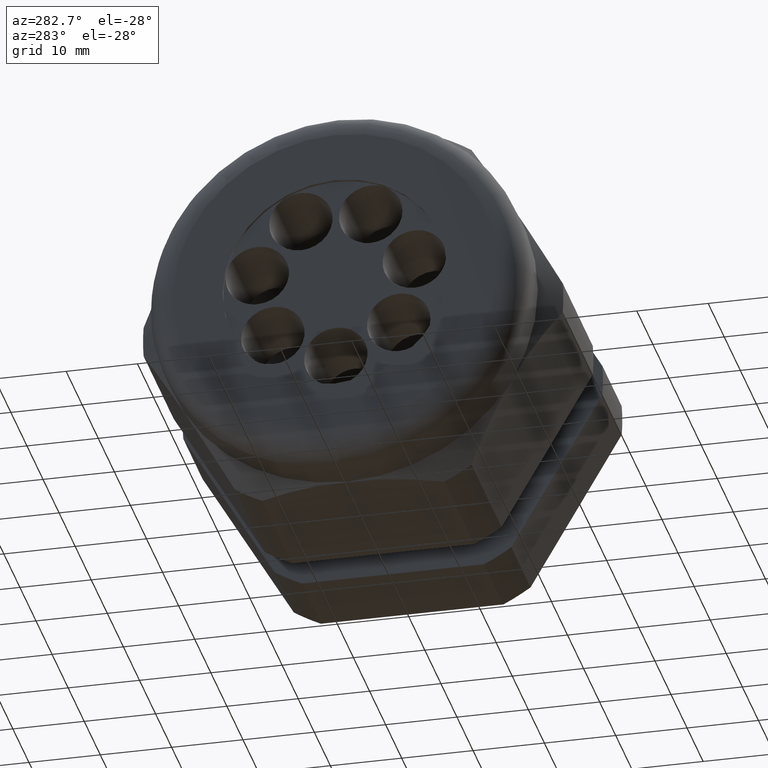
[diagram: clean part render]
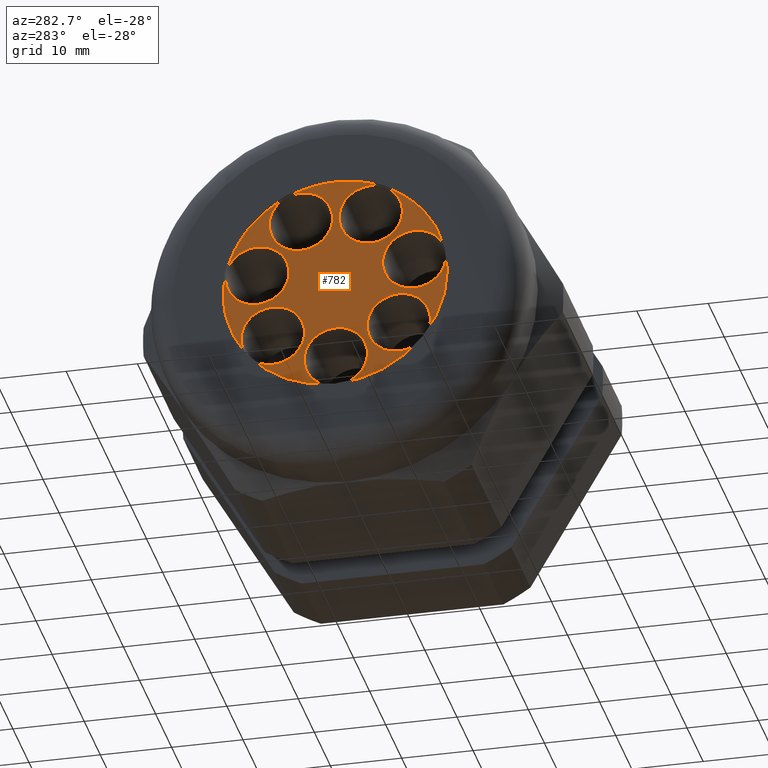
[diagram: same view with one face highlighted and labeled with its STEP entity id]
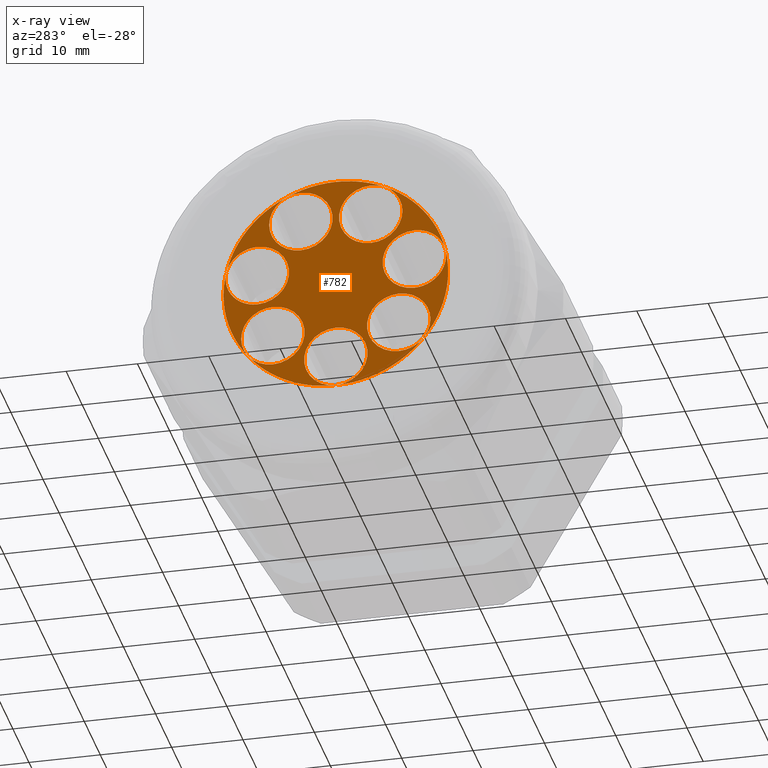
[diagram: x-ray of the same camera — body ghosted, the highlighted face saturated]
A machine part, auxiliary view. The second image highlights one B-rep face of the part: STEP entity #782.
The next image is the same camera in x-ray: the body ghosted, the highlighted face saturated — about 0% of this face is hidden behind the body in this view.
In plain terms, the highlighted planar face has unit normal (-1, 0, 0).
Its self-contained STEP definition (entity closure, byte-faithful):
#268 = VERTEX_POINT ( 'NONE', #1431 ) ;
#270 = VERTEX_POINT ( 'NONE', #1430 ) ;
#300 = EDGE_CURVE ( 'NONE', #270, #268, #1503, .T. ) ;
#314 = VERTEX_POINT ( 'NONE', #1522 ) ;
#328 = VERTEX_POINT ( 'NONE', #1506 ) ;
#361 = VERTEX_POINT ( 'NONE', #1571 ) ;
#362 = EDGE_CURVE ( 'NONE', #314, #361, #1570, .T. ) ;
#366 = VERTEX_POINT ( 'NONE', #1627 ) ;
#372 = EDGE_CURVE ( 'NONE', #380, #366, #1621, .T. ) ;
#380 = VERTEX_POINT ( 'NONE', #1610 ) ;
#385 = EDGE_CURVE ( 'NONE', #853, #328, #1605, .T. ) ;
#387 = VERTEX_POINT ( 'NONE', #1600 ) ;
#390 = EDGE_LOOP ( 'NONE', ( #419, #442 ) ) ;
#391 = EDGE_LOOP ( 'NONE', ( #435, #449 ) ) ;
#395 = EDGE_CURVE ( 'NONE', #399, #387, #1656, .T. ) ;
#396 = ORIENTED_EDGE ( 'NONE', *, *, #408, .F. ) ;
#397 = VERTEX_POINT ( 'NONE', #1651 ) ;
#399 = VERTEX_POINT ( 'NONE', #1650 ) ;
#406 = EDGE_LOOP ( 'NONE', ( #434, #448 ) ) ;
#408 = EDGE_CURVE ( 'NONE', #387, #399, #1638, .T. ) ;
#412 = ORIENTED_EDGE ( 'NONE', *, *, #395, .F. ) ;
#413 = EDGE_CURVE ( 'NONE', #366, #380, #1629, .T. ) ;
#419 = ORIENTED_EDGE ( 'NONE', *, *, #413, .F. ) ;
#434 = ORIENTED_EDGE ( 'NONE', *, *, #385, .F. ) ;
#435 = ORIENTED_EDGE ( 'NONE', *, *, #898, .T. ) ;
#442 = ORIENTED_EDGE ( 'NONE', *, *, #372, .F. ) ;
#448 = ORIENTED_EDGE ( 'NONE', *, *, #851, .F. ) ;
#449 = ORIENTED_EDGE ( 'NONE', *, *, #892, .T. ) ;
#776 = ORIENTED_EDGE ( 'NONE', *, *, #836, .F. ) ;
#777 = ORIENTED_EDGE ( 'NONE', *, *, #779, .F. ) ;
#778 = ORIENTED_EDGE ( 'NONE', *, *, #300, .F. ) ;
#779 = EDGE_CURVE ( 'NONE', #397, #813, #2301, .T. ) ;
#782 = ADVANCED_FACE ( 'NONE', ( #2296, #2295, #2294, #2293, #2292, #2291, #2290, #2289 ), #2288, .T. ) ;
#783 = EDGE_CURVE ( 'NONE', #268, #270, #2352, .T. ) ;
#784 = ORIENTED_EDGE ( 'NONE', *, *, #783, .F. ) ;
#787 = EDGE_LOOP ( 'NONE', ( #791, #880 ) ) ;
#788 = EDGE_CURVE ( 'NONE', #803, #806, #2342, .T. ) ;
#789 = EDGE_CURVE ( 'NONE', #361, #314, #2337, .T. ) ;
#790 = ORIENTED_EDGE ( 'NONE', *, *, #800, .F. ) ;
#791 = ORIENTED_EDGE ( 'NONE', *, *, #789, .F. ) ;
#800 = EDGE_CURVE ( 'NONE', #806, #803, #2378, .T. ) ;
#803 = VERTEX_POINT ( 'NONE', #2367 ) ;
#806 = VERTEX_POINT ( 'NONE', #2366 ) ;
#813 = VERTEX_POINT ( 'NONE', #2359 ) ;
#836 = EDGE_CURVE ( 'NONE', #813, #397, #2410, .T. ) ;
#844 = VERTEX_POINT ( 'NONE', #2449 ) ;
#851 = EDGE_CURVE ( 'NONE', #328, #853, #2437, .T. ) ;
#853 = VERTEX_POINT ( 'NONE', #2427 ) ;
#880 = ORIENTED_EDGE ( 'NONE', *, *, #362, .F. ) ;
#892 = EDGE_CURVE ( 'NONE', #844, #893, #2490, .T. ) ;
#893 = VERTEX_POINT ( 'NONE', #2549 ) ;
#896 = ORIENTED_EDGE ( 'NONE', *, *, #788, .F. ) ;
#898 = EDGE_CURVE ( 'NONE', #893, #844, #2548, .T. ) ;
#900 = EDGE_LOOP ( 'NONE', ( #777, #776 ) ) ;
#901 = EDGE_LOOP ( 'NONE', ( #784, #778 ) ) ;
#902 = EDGE_LOOP ( 'NONE', ( #412, #396 ) ) ;
#904 = EDGE_LOOP ( 'NONE', ( #896, #790 ) ) ;
#1430 = CARTESIAN_POINT ( 'NONE',  ( -2.179999999999999300, 0.3473677276605421900, -0.4520165189658395000 ) ) ;
#1431 = CARTESIAN_POINT ( 'NONE',  ( -2.179999999999999300, 0.3473677276605421900, -0.1020165189658395800 ) ) ;
#1499 = DIRECTION ( 'NONE',  ( 0.0000000000000000000, -0.7818314824680222500, 0.6234898018587431400 ) ) ;
#1500 = DIRECTION ( 'NONE',  ( -1.000000000000000000, 0.0000000000000000000, 0.0000000000000000000 ) ) ;
#1501 = CARTESIAN_POINT ( 'NONE',  ( -2.179999999999999300, 0.3473677276605421900, -0.2770165189658395600 ) ) ;
#1502 = AXIS2_PLACEMENT_3D ( 'NONE', #1501, #1500, #1499 ) ;
#1503 = CIRCLE ( 'NONE', #1502, 0.1749999999999999900 ) ;
#1506 = CARTESIAN_POINT ( 'NONE',  ( -2.179999999999999300, 2.143131898507868900E-017, -0.6192999999999998500 ) ) ;
#1522 = CARTESIAN_POINT ( 'NONE',  ( -2.179999999999999300, -0.1927745452899285700, 0.2253004680090459600 ) ) ;
#1567 = DIRECTION ( 'NONE',  ( -1.000000000000000000, 0.0000000000000000000, 0.0000000000000000000 ) ) ;
#1568 = CARTESIAN_POINT ( 'NONE',  ( -2.179999999999999300, -0.1927745452899286000, 0.4003004680090459500 ) ) ;
#1569 = AXIS2_PLACEMENT_3D ( 'NONE', #1568, #1567, #1628 ) ;
#1570 = CIRCLE ( 'NONE', #1569, 0.1749999999999999900 ) ;
#1571 = CARTESIAN_POINT ( 'NONE',  ( -2.179999999999999300, -0.1927745452899286000, 0.5753004680090458800 ) ) ;
#1600 = CARTESIAN_POINT ( 'NONE',  ( -2.179999999999999300, -0.4331604713823837800, -0.07613394904320780500 ) ) ;
#1601 = DIRECTION ( 'NONE',  ( 0.0000000000000000000, 0.0000000000000000000, 1.000000000000000000 ) ) ;
#1602 = DIRECTION ( 'NONE',  ( -1.000000000000000000, 0.0000000000000000000, 0.0000000000000000000 ) ) ;
#1603 = CARTESIAN_POINT ( 'NONE',  ( -2.179999999999999300, 0.0000000000000000000, -0.4442999999999999700 ) ) ;
#1604 = AXIS2_PLACEMENT_3D ( 'NONE', #1603, #1602, #1601 ) ;
#1605 = CIRCLE ( 'NONE', #1604, 0.1749999999999999900 ) ;
#1610 = CARTESIAN_POINT ( 'NONE',  ( -2.179999999999999300, -0.3473677276605461900, -0.4520165189658345600 ) ) ;
#1617 = DIRECTION ( 'NONE',  ( 0.0000000000000000000, 0.7818314824680309100, 0.6234898018587320400 ) ) ;
#1618 = DIRECTION ( 'NONE',  ( -1.000000000000000000, 0.0000000000000000000, 0.0000000000000000000 ) ) ;
#1619 = CARTESIAN_POINT ( 'NONE',  ( -2.179999999999999300, -0.3473677276605461900, -0.2770165189658346200 ) ) ;
#1620 = AXIS2_PLACEMENT_3D ( 'NONE', #1619, #1618, #1617 ) ;
#1621 = CIRCLE ( 'NONE', #1620, 0.1749999999999999900 ) ;
#1627 = CARTESIAN_POINT ( 'NONE',  ( -2.179999999999999300, -0.3473677276605461900, -0.1020165189658346600 ) ) ;
#1628 = DIRECTION ( 'NONE',  ( 0.0000000000000000000, 0.4338837391175525700, -0.9009688679024218100 ) ) ;
#1629 = CIRCLE ( 'NONE', #1693, 0.1749999999999999900 ) ;
#1634 = DIRECTION ( 'NONE',  ( 0.0000000000000000000, 0.9749279121818227300, -0.2225209339563182200 ) ) ;
#1635 = DIRECTION ( 'NONE',  ( -1.000000000000000000, 0.0000000000000000000, 0.0000000000000000000 ) ) ;
#1636 = CARTESIAN_POINT ( 'NONE',  ( -2.179999999999999300, -0.4331604713823837800, 0.09886605095679217000 ) ) ;
#1637 = AXIS2_PLACEMENT_3D ( 'NONE', #1636, #1635, #1634 ) ;
#1638 = CIRCLE ( 'NONE', #1637, 0.1749999999999999900 ) ;
#1650 = CARTESIAN_POINT ( 'NONE',  ( -2.179999999999999300, -0.4331604713823837800, 0.2738660509567921700 ) ) ;
#1651 = CARTESIAN_POINT ( 'NONE',  ( -2.179999999999999300, 0.4331604713823851700, 0.2738660509567862900 ) ) ;
#1652 = DIRECTION ( 'NONE',  ( 0.0000000000000000000, 0.9749279121818227300, -0.2225209339563182200 ) ) ;
#1653 = DIRECTION ( 'NONE',  ( -1.000000000000000000, 0.0000000000000000000, 0.0000000000000000000 ) ) ;
#1654 = CARTESIAN_POINT ( 'NONE',  ( -2.179999999999999300, -0.4331604713823837800, 0.09886605095679217000 ) ) ;
#1655 = AXIS2_PLACEMENT_3D ( 'NONE', #1654, #1653, #1652 ) ;
#1656 = CIRCLE ( 'NONE', #1655, 0.1749999999999999900 ) ;
#1690 = DIRECTION ( 'NONE',  ( 0.0000000000000000000, 0.7818314824680309100, 0.6234898018587320400 ) ) ;
#1691 = DIRECTION ( 'NONE',  ( -1.000000000000000000, 0.0000000000000000000, 0.0000000000000000000 ) ) ;
#1692 = CARTESIAN_POINT ( 'NONE',  ( -2.179999999999999300, -0.3473677276605461900, -0.2770165189658346200 ) ) ;
#1693 = AXIS2_PLACEMENT_3D ( 'NONE', #1692, #1691, #1690 ) ;
#2288 = PLANE ( 'NONE',  #2356 ) ;
#2289 = FACE_OUTER_BOUND ( 'NONE', #391, .T. ) ;
#2290 = FACE_BOUND ( 'NONE', #406, .T. ) ;
#2291 = FACE_BOUND ( 'NONE', #390, .T. ) ;
#2292 = FACE_BOUND ( 'NONE', #902, .T. ) ;
#2293 = FACE_BOUND ( 'NONE', #787, .T. ) ;
#2294 = FACE_BOUND ( 'NONE', #904, .T. ) ;
#2295 = FACE_BOUND ( 'NONE', #900, .T. ) ;
#2296 = FACE_BOUND ( 'NONE', #901, .T. ) ;
#2297 = DIRECTION ( 'NONE',  ( 0.0000000000000000000, -0.9749279121818257300, -0.2225209339563050700 ) ) ;
#2298 = DIRECTION ( 'NONE',  ( -1.000000000000000000, 0.0000000000000000000, 0.0000000000000000000 ) ) ;
#2299 = CARTESIAN_POINT ( 'NONE',  ( -2.179999999999999300, 0.4331604713823851700, 0.09886605095678631400 ) ) ;
#2300 = AXIS2_PLACEMENT_3D ( 'NONE', #2299, #2298, #2297 ) ;
#2301 = CIRCLE ( 'NONE', #2300, 0.1749999999999999900 ) ;
#2333 = DIRECTION ( 'NONE',  ( 0.0000000000000000000, 0.4338837391175525700, -0.9009688679024218100 ) ) ;
#2334 = DIRECTION ( 'NONE',  ( -1.000000000000000000, 0.0000000000000000000, 0.0000000000000000000 ) ) ;
#2335 = CARTESIAN_POINT ( 'NONE',  ( -2.179999999999999300, -0.1927745452899286000, 0.4003004680090459500 ) ) ;
#2336 = AXIS2_PLACEMENT_3D ( 'NONE', #2335, #2334, #2333 ) ;
#2337 = CIRCLE ( 'NONE', #2336, 0.1749999999999999900 ) ;
#2338 = DIRECTION ( 'NONE',  ( 0.0000000000000000000, -0.4338837391175652300, -0.9009688679024158200 ) ) ;
#2339 = DIRECTION ( 'NONE',  ( -1.000000000000000000, 0.0000000000000000000, 0.0000000000000000000 ) ) ;
#2340 = CARTESIAN_POINT ( 'NONE',  ( -2.179999999999999300, 0.1927745452899342100, 0.4003004680090432900 ) ) ;
#2341 = AXIS2_PLACEMENT_3D ( 'NONE', #2340, #2339, #2338 ) ;
#2342 = CIRCLE ( 'NONE', #2341, 0.1749999999999999600 ) ;
#2348 = DIRECTION ( 'NONE',  ( 0.0000000000000000000, -0.7818314824680222500, 0.6234898018587431400 ) ) ;
#2349 = DIRECTION ( 'NONE',  ( -1.000000000000000000, 0.0000000000000000000, 0.0000000000000000000 ) ) ;
#2350 = CARTESIAN_POINT ( 'NONE',  ( -2.179999999999999300, 0.3473677276605421900, -0.2770165189658395600 ) ) ;
#2351 = AXIS2_PLACEMENT_3D ( 'NONE', #2350, #2349, #2348 ) ;
#2352 = CIRCLE ( 'NONE', #2351, 0.1749999999999999900 ) ;
#2353 = DIRECTION ( 'NONE',  ( 0.0000000000000000000, 0.0000000000000000000, 1.000000000000000000 ) ) ;
#2354 = DIRECTION ( 'NONE',  ( -1.000000000000000000, 0.0000000000000000000, 0.0000000000000000000 ) ) ;
#2355 = CARTESIAN_POINT ( 'NONE',  ( -2.179999999999999300, 0.0000000000000000000, 0.0000000000000000000 ) ) ;
#2356 = AXIS2_PLACEMENT_3D ( 'NONE', #2355, #2354, #2353 ) ;
#2359 = CARTESIAN_POINT ( 'NONE',  ( -2.179999999999999300, 0.4331604713823851700, -0.07613394904321366100 ) ) ;
#2366 = CARTESIAN_POINT ( 'NONE',  ( -2.179999999999999300, 0.1927745452899342300, 0.2253004680090433000 ) ) ;
#2367 = CARTESIAN_POINT ( 'NONE',  ( -2.179999999999999300, 0.1927745452899342100, 0.5753004680090432200 ) ) ;
#2374 = DIRECTION ( 'NONE',  ( 0.0000000000000000000, -0.4338837391175652300, -0.9009688679024158200 ) ) ;
#2375 = DIRECTION ( 'NONE',  ( -1.000000000000000000, 0.0000000000000000000, 0.0000000000000000000 ) ) ;
#2376 = CARTESIAN_POINT ( 'NONE',  ( -2.179999999999999300, 0.1927745452899342100, 0.4003004680090432900 ) ) ;
#2377 = AXIS2_PLACEMENT_3D ( 'NONE', #2376, #2375, #2374 ) ;
#2378 = CIRCLE ( 'NONE', #2377, 0.1749999999999999600 ) ;
#2406 = DIRECTION ( 'NONE',  ( 0.0000000000000000000, -0.9749279121818257300, -0.2225209339563050700 ) ) ;
#2407 = DIRECTION ( 'NONE',  ( -1.000000000000000000, 0.0000000000000000000, 0.0000000000000000000 ) ) ;
#2408 = CARTESIAN_POINT ( 'NONE',  ( -2.179999999999999300, 0.4331604713823851700, 0.09886605095678631400 ) ) ;
#2409 = AXIS2_PLACEMENT_3D ( 'NONE', #2408, #2407, #2406 ) ;
#2410 = CIRCLE ( 'NONE', #2409, 0.1749999999999999900 ) ;
#2427 = CARTESIAN_POINT ( 'NONE',  ( -2.179999999999999300, 0.0000000000000000000, -0.2692999999999999800 ) ) ;
#2433 = DIRECTION ( 'NONE',  ( 0.0000000000000000000, 0.0000000000000000000, 1.000000000000000000 ) ) ;
#2434 = DIRECTION ( 'NONE',  ( -1.000000000000000000, 0.0000000000000000000, 0.0000000000000000000 ) ) ;
#2435 = CARTESIAN_POINT ( 'NONE',  ( -2.179999999999999300, 0.0000000000000000000, -0.4442999999999999700 ) ) ;
#2436 = AXIS2_PLACEMENT_3D ( 'NONE', #2435, #2434, #2433 ) ;
#2437 = CIRCLE ( 'NONE', #2436, 0.1749999999999999900 ) ;
#2449 = CARTESIAN_POINT ( 'NONE',  ( -2.179999999999999300, 7.592810154713589100E-017, -0.6200000000000000000 ) ) ;
#2487 = DIRECTION ( 'NONE',  ( -1.000000000000000000, 0.0000000000000000000, 0.0000000000000000000 ) ) ;
#2488 = CARTESIAN_POINT ( 'NONE',  ( -2.179999999999999300, 0.0000000000000000000, 0.0000000000000000000 ) ) ;
#2489 = AXIS2_PLACEMENT_3D ( 'NONE', #2488, #2487, #2550 ) ;
#2490 = CIRCLE ( 'NONE', #2489, 0.6200000000000000000 ) ;
#2544 = DIRECTION ( 'NONE',  ( 0.0000000000000000000, 0.0000000000000000000, 1.000000000000000000 ) ) ;
#2545 = DIRECTION ( 'NONE',  ( -1.000000000000000000, 0.0000000000000000000, 0.0000000000000000000 ) ) ;
#2546 = CARTESIAN_POINT ( 'NONE',  ( -2.179999999999999300, 0.0000000000000000000, 0.0000000000000000000 ) ) ;
#2547 = AXIS2_PLACEMENT_3D ( 'NONE', #2546, #2545, #2544 ) ;
#2548 = CIRCLE ( 'NONE', #2547, 0.6200000000000000000 ) ;
#2549 = CARTESIAN_POINT ( 'NONE',  ( -2.179999999999999300, 0.0000000000000000000, 0.6200000000000000000 ) ) ;
#2550 = DIRECTION ( 'NONE',  ( 0.0000000000000000000, 0.0000000000000000000, 1.000000000000000000 ) ) ;